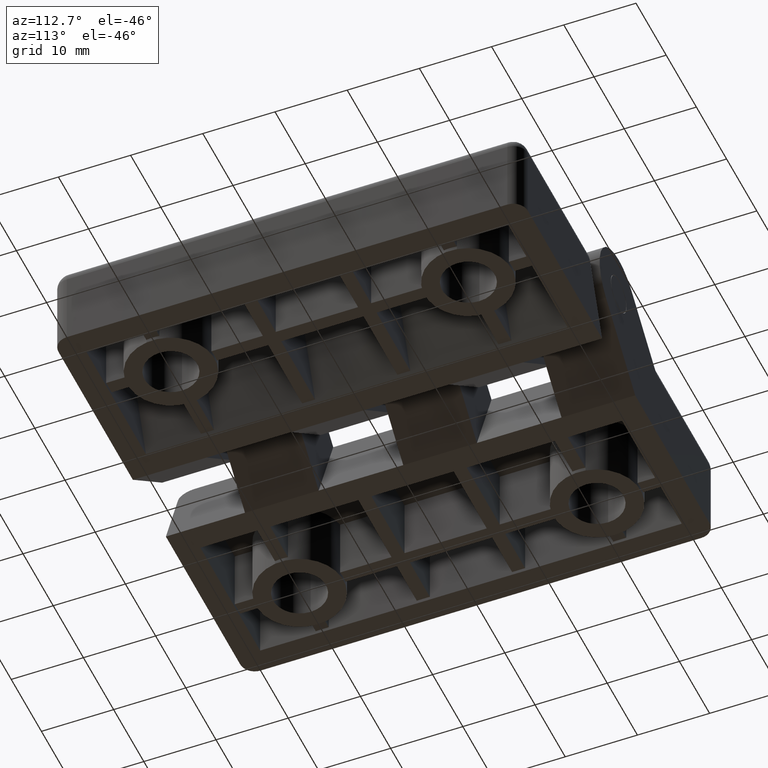
[diagram: clean part render]
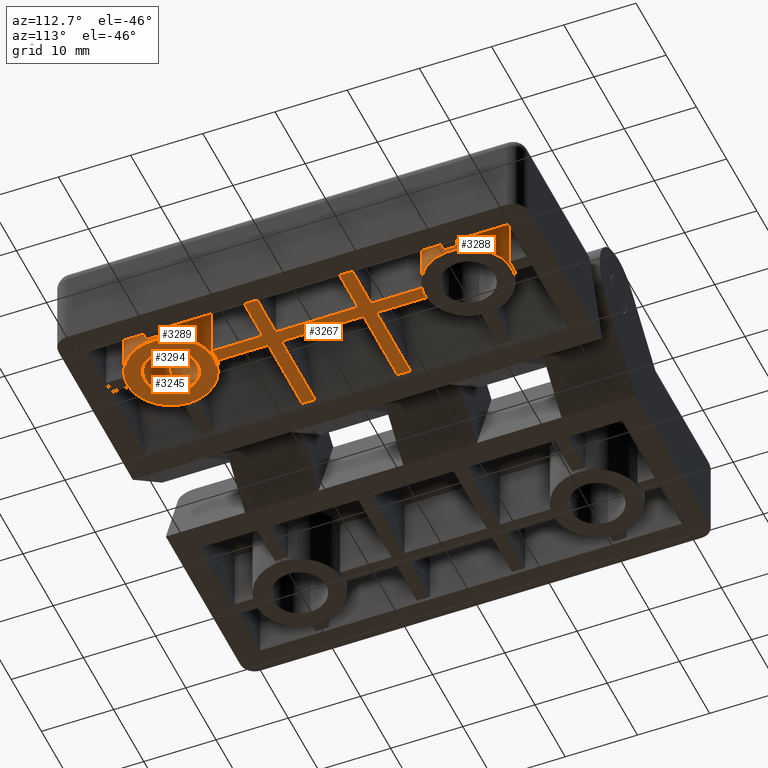
[diagram: same view with one multi-face feature highlighted, each face labeled with its STEP entity id]
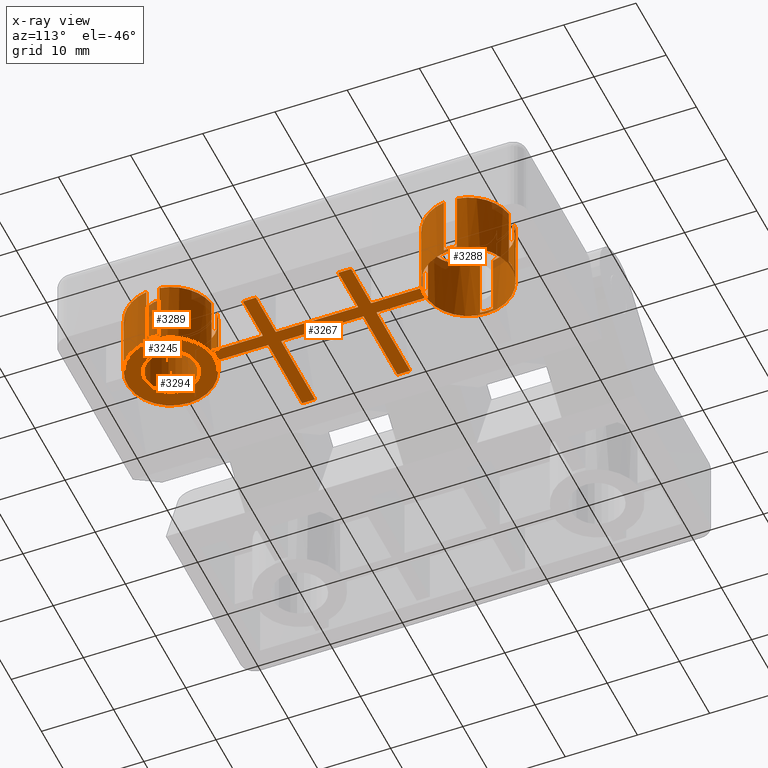
[diagram: x-ray of the same camera — body ghosted, the whole feature saturated]
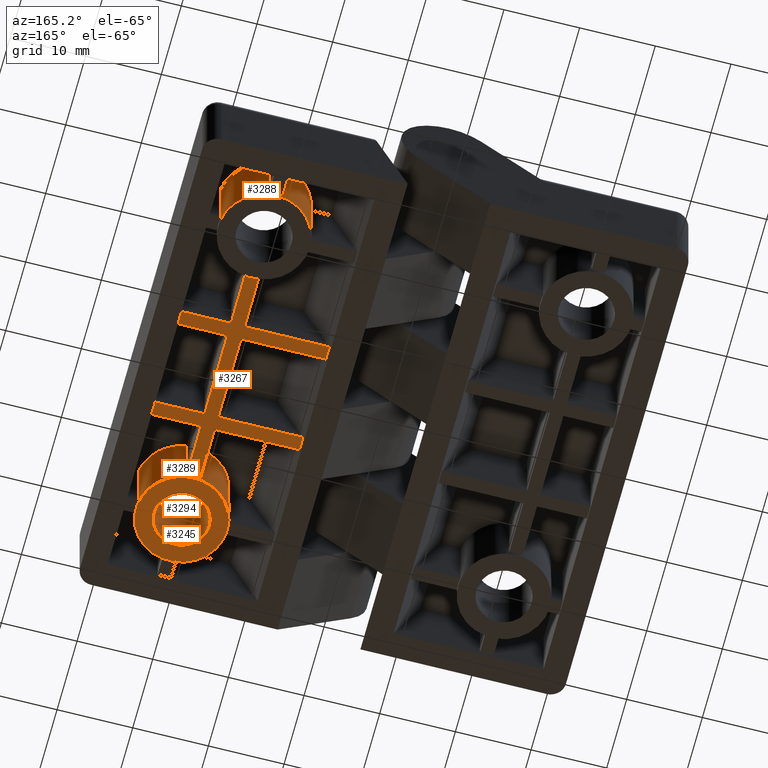
[diagram: same view with one multi-face feature highlighted, each face labeled with its STEP entity id]
A machine part, auxiliary view. The highlighted faces form ONE feature: a stepped (counterbored) hole: 3 coaxial cylindrical walls of radii 3.65 -> 6.05 -> 6.05 mm joined by 2 annular planar shoulder face(s). The faces share edges in the B-rep.
The next image is the same camera in x-ray: the body ghosted and the whole hole feature saturated, so the bore chain is visible through the body.
A second angle (auxiliary view) of the same feature is appended — it is thin or edge-on in the first view.
Their STEP definitions:
[1] entity #3288 (Cylinder):
#77=FACE_BOUND('',#599,.T.);
#382=FACE_OUTER_BOUND('',#598,.T.);
#598=EDGE_LOOP('',(#2938));
#599=EDGE_LOOP('',(#2939,#2940,#2941,#2942,#2943,#2944,#2945,#2946,#2947,
#2948,#2949,#2950,#2951,#2952,#2953,#2954));
#702=CIRCLE('',#3501,6.05);
#708=CIRCLE('',#3517,6.05);
#709=CIRCLE('',#3522,6.05);
#712=CIRCLE('',#3535,6.05);
#715=CIRCLE('',#3549,6.05);
#716=CIRCLE('',#3551,6.05);
#717=CIRCLE('',#3553,6.05);
#720=CIRCLE('',#3564,6.05);
#721=CIRCLE('',#3565,6.05);
#969=LINE('',#5197,#1323);
#971=LINE('',#5202,#1325);
#1024=LINE('',#5315,#1378);
#1026=LINE('',#5320,#1380);
#1030=LINE('',#5329,#1384);
#1044=LINE('',#5367,#1398);
#1046=LINE('',#5371,#1400);
#1049=LINE('',#5376,#1403);
#1323=VECTOR('',#4244,8.79999999999999);
#1325=VECTOR('',#4248,8.79999999999999);
#1378=VECTOR('',#4347,8.79999999999999);
#1380=VECTOR('',#4351,8.79999999999999);
#1384=VECTOR('',#4357,8.8);
#1398=VECTOR('',#4397,8.79999999999999);
#1400=VECTOR('',#4401,8.79999999999999);
#1403=VECTOR('',#4406,8.8);
#1630=VERTEX_POINT('',#5104);
#1666=VERTEX_POINT('',#5189);
#1667=VERTEX_POINT('',#5191);
#1668=VERTEX_POINT('',#5195);
#1669=VERTEX_POINT('',#5199);
#1670=VERTEX_POINT('',#5201);
#1674=VERTEX_POINT('',#5213);
#1707=VERTEX_POINT('',#5314);
#1708=VERTEX_POINT('',#5318);
#1709=VERTEX_POINT('',#5319);
#1712=VERTEX_POINT('',#5327);
#1713=VERTEX_POINT('',#5328);
#1716=VERTEX_POINT('',#5341);
#1717=VERTEX_POINT('',#5345);
#1719=VERTEX_POINT('',#5351);
#1724=VERTEX_POINT('',#5366);
#1725=VERTEX_POINT('',#5370);
#2017=EDGE_CURVE('',#1630,#1630,#702,.T.);
#2057=EDGE_CURVE('',#1666,#1667,#708,.T.);
#2060=EDGE_CURVE('',#1666,#1668,#969,.T.);
#2062=EDGE_CURVE('',#1670,#1669,#971,.T.);
#2069=EDGE_CURVE('',#1674,#1669,#709,.T.);
#2106=EDGE_CURVE('',#1668,#1670,#712,.T.);
#2120=EDGE_CURVE('',#1674,#1707,#1024,.T.);
#2122=EDGE_CURVE('',#1708,#1709,#1026,.T.);
#2126=EDGE_CURVE('',#1712,#1713,#1030,.T.);
#2133=EDGE_CURVE('',#1713,#1716,#715,.T.);
#2135=EDGE_CURVE('',#1709,#1717,#716,.T.);
#2138=EDGE_CURVE('',#1707,#1719,#717,.T.);
#2145=EDGE_CURVE('',#1719,#1724,#1044,.T.);
#2147=EDGE_CURVE('',#1717,#1725,#1046,.T.);
#2150=EDGE_CURVE('',#1716,#1667,#1049,.T.);
#2155=EDGE_CURVE('',#1708,#1724,#720,.T.);
#2156=EDGE_CURVE('',#1712,#1725,#721,.T.);
#2938=ORIENTED_EDGE('',*,*,#2017,.F.);
#2939=ORIENTED_EDGE('',*,*,#2138,.T.);
#2940=ORIENTED_EDGE('',*,*,#2145,.T.);
#2941=ORIENTED_EDGE('',*,*,#2155,.F.);
#2942=ORIENTED_EDGE('',*,*,#2122,.T.);
#2943=ORIENTED_EDGE('',*,*,#2135,.T.);
#2944=ORIENTED_EDGE('',*,*,#2147,.T.);
#2945=ORIENTED_EDGE('',*,*,#2156,.F.);
#2946=ORIENTED_EDGE('',*,*,#2126,.T.);
#2947=ORIENTED_EDGE('',*,*,#2133,.T.);
#2948=ORIENTED_EDGE('',*,*,#2150,.T.);
#2949=ORIENTED_EDGE('',*,*,#2057,.F.);
#2950=ORIENTED_EDGE('',*,*,#2060,.T.);
#2951=ORIENTED_EDGE('',*,*,#2106,.T.);
#2952=ORIENTED_EDGE('',*,*,#2062,.T.);
#2953=ORIENTED_EDGE('',*,*,#2069,.F.);
#2954=ORIENTED_EDGE('',*,*,#2120,.T.);
#3130=CYLINDRICAL_SURFACE('',#3563,6.05);
#3288=ADVANCED_FACE('',(#382,#77),#3130,.T.);
#3501=AXIS2_PLACEMENT_3D('',#5105,#4172,#4173);
#3517=AXIS2_PLACEMENT_3D('',#5192,#4238,#4239);
#3522=AXIS2_PLACEMENT_3D('',#5215,#4259,#4260);
#3535=AXIS2_PLACEMENT_3D('',#5285,#4319,#4320);
#3549=AXIS2_PLACEMENT_3D('',#5342,#4371,#4372);
#3551=AXIS2_PLACEMENT_3D('',#5346,#4376,#4377);
#3553=AXIS2_PLACEMENT_3D('',#5352,#4382,#4383);
#3563=AXIS2_PLACEMENT_3D('',#5384,#4416,#4417);
#3564=AXIS2_PLACEMENT_3D('',#5385,#4418,#4419);
#3565=AXIS2_PLACEMENT_3D('',#5386,#4420,#4421);
#4172=DIRECTION('center_axis',(0.,0.,-1.));
#4173=DIRECTION('ref_axis',(1.,0.,0.));
#4238=DIRECTION('center_axis',(-2.39444996755761E-16,0.,1.));
#4239=DIRECTION('ref_axis',(1.,0.,2.39444996755761E-16));
#4244=DIRECTION('',(0.,0.,-1.));
#4248=DIRECTION('',(0.,0.,1.));
#4259=DIRECTION('center_axis',(-2.39444996755761E-16,0.,1.));
#4260=DIRECTION('ref_axis',(1.,0.,2.39444996755761E-16));
#4319=DIRECTION('center_axis',(0.,0.,-1.));
#4320=DIRECTION('ref_axis',(1.,0.,0.));
#4347=DIRECTION('',(0.,0.,-1.));
#4351=DIRECTION('',(0.,0.,-1.));
#4357=DIRECTION('',(0.,0.,-1.));
#4371=DIRECTION('center_axis',(0.,0.,-1.));
#4372=DIRECTION('ref_axis',(1.,0.,0.));
#4376=DIRECTION('center_axis',(0.,0.,-1.));
#4377=DIRECTION('ref_axis',(1.,0.,0.));
#4382=DIRECTION('center_axis',(0.,0.,-1.));
#4383=DIRECTION('ref_axis',(1.,0.,0.));
#4397=DIRECTION('',(0.,0.,1.));
#4401=DIRECTION('',(0.,0.,1.));
#4406=DIRECTION('',(0.,0.,1.));
#4416=DIRECTION('center_axis',(0.,0.,1.));
#4417=DIRECTION('ref_axis',(1.,0.,0.));
#4418=DIRECTION('center_axis',(-2.39444996755761E-16,0.,1.));
#4419=DIRECTION('ref_axis',(1.,0.,2.39444996755761E-16));
#4420=DIRECTION('center_axis',(-2.39444996755761E-16,0.,1.));
#4421=DIRECTION('ref_axis',(1.,0.,2.39444996755761E-16));
#5104=CARTESIAN_POINT('',(15.25,20.6,-13.3999999999871));
#5105=CARTESIAN_POINT('Origin',(21.3,20.6,-13.3999999999871));
#5189=CARTESIAN_POINT('',(22.2,14.6173166555466,-4.09999999998711));
#5191=CARTESIAN_POINT('',(27.2826833444534,19.7,-4.0999999999871));
#5192=CARTESIAN_POINT('Origin',(21.3,20.6,-4.09999999998711));
#5195=CARTESIAN_POINT('',(22.2,14.6173166555466,-12.8999999999871));
#5197=CARTESIAN_POINT('',(22.2,14.6173166555466,-13.3999999999871));
#5199=CARTESIAN_POINT('',(20.4,14.6173166555466,-4.09999999998711));
#5201=CARTESIAN_POINT('',(20.4,14.6173166555466,-12.8999999999871));
#5202=CARTESIAN_POINT('',(20.4,14.6173166555466,-13.3999999999871));
#5213=CARTESIAN_POINT('',(15.3173166555466,19.7,-4.09999999998711));
#5215=CARTESIAN_POINT('Origin',(21.3,20.6,-4.09999999998711));
#5285=CARTESIAN_POINT('Origin',(21.3,20.6,-12.8999999999871));
#5314=CARTESIAN_POINT('',(15.3173166555466,19.7,-12.8999999999871));
#5315=CARTESIAN_POINT('',(15.3173166555466,19.7,-13.3999999999871));
#5318=CARTESIAN_POINT('',(20.4,26.5826833444534,-4.09999999998711));
#5319=CARTESIAN_POINT('',(20.4,26.5826833444534,-12.8999999999871));
#5320=CARTESIAN_POINT('',(20.4,26.5826833444534,-13.3999999999871));
#5327=CARTESIAN_POINT('',(27.2826833444534,21.5,-4.0999999999871));
#5328=CARTESIAN_POINT('',(27.2826833444534,21.5,-12.8999999999871));
#5329=CARTESIAN_POINT('',(27.2826833444534,21.5,-13.3999999999871));
#5341=CARTESIAN_POINT('',(27.2826833444534,19.7,-12.8999999999871));
#5342=CARTESIAN_POINT('Origin',(21.3,20.6,-12.8999999999871));
#5345=CARTESIAN_POINT('',(22.2,26.5826833444534,-12.8999999999871));
#5346=CARTESIAN_POINT('Origin',(21.3,20.6,-12.8999999999871));
#5351=CARTESIAN_POINT('',(15.3173166555466,21.5,-12.8999999999871));
#5352=CARTESIAN_POINT('Origin',(21.3,20.6,-12.8999999999871));
#5366=CARTESIAN_POINT('',(15.3173166555466,21.5,-4.09999999998711));
#5367=CARTESIAN_POINT('',(15.3173166555466,21.5,-13.3999999999871));
#5370=CARTESIAN_POINT('',(22.2,26.5826833444534,-4.09999999998711));
#5371=CARTESIAN_POINT('',(22.2,26.5826833444534,-13.3999999999871));
#5376=CARTESIAN_POINT('',(27.2826833444534,19.7,-13.3999999999871));
#5384=CARTESIAN_POINT('Origin',(21.3,20.6,-13.3999999999871));
#5385=CARTESIAN_POINT('Origin',(21.3,20.6,-4.09999999998711));
#5386=CARTESIAN_POINT('Origin',(21.3,20.6,-4.09999999998711));
[2] entity #3289 (Cylinder):
#78=FACE_BOUND('',#601,.T.);
#383=FACE_OUTER_BOUND('',#600,.T.);
#600=EDGE_LOOP('',(#2955));
#601=EDGE_LOOP('',(#2956,#2957,#2958,#2959,#2960,#2961,#2962,#2963,#2964,
#2965,#2966,#2967,#2968,#2969,#2970,#2971));
#710=CIRCLE('',#3528,6.05);
#711=CIRCLE('',#3534,6.05);
#713=CIRCLE('',#3537,6.05);
#714=CIRCLE('',#3547,6.05);
#718=CIRCLE('',#3555,6.05);
#719=CIRCLE('',#3562,6.05);
#722=CIRCLE('',#3567,6.05);
#723=CIRCLE('',#3568,6.05);
#724=CIRCLE('',#3569,6.05);
#1008=LINE('',#5277,#1362);
#1014=LINE('',#5293,#1368);
#1015=LINE('',#5297,#1369);
#1019=LINE('',#5306,#1373);
#1022=LINE('',#5311,#1376);
#1033=LINE('',#5334,#1387);
#1040=LINE('',#5359,#1394);
#1050=LINE('',#5379,#1404);
#1362=VECTOR('',#4309,8.79999999999999);
#1368=VECTOR('',#4329,8.79999999999999);
#1369=VECTOR('',#4332,8.79999999999999);
#1373=VECTOR('',#4338,8.79999999999999);
#1376=VECTOR('',#4343,8.79999999999999);
#1387=VECTOR('',#4362,8.8);
#1394=VECTOR('',#4391,8.79999999999999);
#1404=VECTOR('',#4409,8.8);
#1685=VERTEX_POINT('',#5244);
#1686=VERTEX_POINT('',#5246);
#1696=VERTEX_POINT('',#5276);
#1697=VERTEX_POINT('',#5282);
#1698=VERTEX_POINT('',#5287);
#1699=VERTEX_POINT('',#5289);
#1700=VERTEX_POINT('',#5295);
#1701=VERTEX_POINT('',#5296);
#1704=VERTEX_POINT('',#5304);
#1705=VERTEX_POINT('',#5305);
#1706=VERTEX_POINT('',#5310);
#1714=VERTEX_POINT('',#5333);
#1715=VERTEX_POINT('',#5337);
#1720=VERTEX_POINT('',#5357);
#1721=VERTEX_POINT('',#5358);
#1727=VERTEX_POINT('',#5378);
#1728=VERTEX_POINT('',#5388);
#2084=EDGE_CURVE('',#1685,#1686,#710,.T.);
#2101=EDGE_CURVE('',#1696,#1686,#1008,.T.);
#2104=EDGE_CURVE('',#1697,#1696,#711,.T.);
#2108=EDGE_CURVE('',#1698,#1699,#713,.T.);
#2110=EDGE_CURVE('',#1698,#1697,#1014,.T.);
#2111=EDGE_CURVE('',#1700,#1701,#1015,.T.);
#2115=EDGE_CURVE('',#1704,#1705,#1019,.T.);
#2118=EDGE_CURVE('',#1706,#1699,#1022,.T.);
#2129=EDGE_CURVE('',#1685,#1714,#1033,.T.);
#2131=EDGE_CURVE('',#1714,#1715,#714,.T.);
#2140=EDGE_CURVE('',#1705,#1706,#718,.T.);
#2141=EDGE_CURVE('',#1720,#1721,#1040,.T.);
#2151=EDGE_CURVE('',#1715,#1727,#1050,.T.);
#2153=EDGE_CURVE('',#1701,#1720,#719,.T.);
#2157=EDGE_CURVE('',#1728,#1728,#722,.T.);
#2158=EDGE_CURVE('',#1700,#1727,#723,.T.);
#2159=EDGE_CURVE('',#1704,#1721,#724,.T.);
#2955=ORIENTED_EDGE('',*,*,#2157,.F.);
#2956=ORIENTED_EDGE('',*,*,#2140,.T.);
#2957=ORIENTED_EDGE('',*,*,#2118,.T.);
#2958=ORIENTED_EDGE('',*,*,#2108,.F.);
#2959=ORIENTED_EDGE('',*,*,#2110,.T.);
#2960=ORIENTED_EDGE('',*,*,#2104,.T.);
#2961=ORIENTED_EDGE('',*,*,#2101,.T.);
#2962=ORIENTED_EDGE('',*,*,#2084,.F.);
#2963=ORIENTED_EDGE('',*,*,#2129,.T.);
#2964=ORIENTED_EDGE('',*,*,#2131,.T.);
#2965=ORIENTED_EDGE('',*,*,#2151,.T.);
#2966=ORIENTED_EDGE('',*,*,#2158,.F.);
#2967=ORIENTED_EDGE('',*,*,#2111,.T.);
#2968=ORIENTED_EDGE('',*,*,#2153,.T.);
#2969=ORIENTED_EDGE('',*,*,#2141,.T.);
#2970=ORIENTED_EDGE('',*,*,#2159,.F.);
#2971=ORIENTED_EDGE('',*,*,#2115,.T.);
#3131=CYLINDRICAL_SURFACE('',#3566,6.05);
#3289=ADVANCED_FACE('',(#383,#78),#3131,.T.);
#3528=AXIS2_PLACEMENT_3D('',#5247,#4285,#4286);
#3534=AXIS2_PLACEMENT_3D('',#5283,#4316,#4317);
#3537=AXIS2_PLACEMENT_3D('',#5290,#4324,#4325);
#3547=AXIS2_PLACEMENT_3D('',#5338,#4366,#4367);
#3555=AXIS2_PLACEMENT_3D('',#5355,#4387,#4388);
#3562=AXIS2_PLACEMENT_3D('',#5382,#4413,#4414);
#3566=AXIS2_PLACEMENT_3D('',#5387,#4422,#4423);
#3567=AXIS2_PLACEMENT_3D('',#5389,#4424,#4425);
#3568=AXIS2_PLACEMENT_3D('',#5390,#4426,#4427);
#3569=AXIS2_PLACEMENT_3D('',#5391,#4428,#4429);
#4285=DIRECTION('center_axis',(-2.39444996755761E-16,0.,1.));
#4286=DIRECTION('ref_axis',(1.,0.,2.39444996755761E-16));
#4309=DIRECTION('',(0.,0.,1.));
#4316=DIRECTION('center_axis',(0.,0.,-1.));
#4317=DIRECTION('ref_axis',(1.,0.,0.));
#4324=DIRECTION('center_axis',(-2.39444996755761E-16,0.,1.));
#4325=DIRECTION('ref_axis',(1.,0.,2.39444996755761E-16));
#4329=DIRECTION('',(0.,0.,-1.));
#4332=DIRECTION('',(0.,0.,-1.));
#4338=DIRECTION('',(0.,0.,-1.));
#4343=DIRECTION('',(0.,0.,1.));
#4362=DIRECTION('',(0.,0.,-1.));
#4366=DIRECTION('center_axis',(0.,0.,-1.));
#4367=DIRECTION('ref_axis',(1.,0.,0.));
#4387=DIRECTION('center_axis',(0.,0.,-1.));
#4388=DIRECTION('ref_axis',(1.,0.,0.));
#4391=DIRECTION('',(0.,0.,1.));
#4409=DIRECTION('',(0.,0.,1.));
#4413=DIRECTION('center_axis',(0.,0.,-1.));
#4414=DIRECTION('ref_axis',(1.,0.,0.));
#4422=DIRECTION('center_axis',(0.,0.,1.));
#4423=DIRECTION('ref_axis',(1.,0.,0.));
#4424=DIRECTION('center_axis',(0.,0.,-1.));
#4425=DIRECTION('ref_axis',(1.,0.,0.));
#4426=DIRECTION('center_axis',(-2.39444996755761E-16,0.,1.));
#4427=DIRECTION('ref_axis',(1.,0.,2.39444996755761E-16));
#4428=DIRECTION('center_axis',(-2.39444996755761E-16,0.,1.));
#4429=DIRECTION('ref_axis',(1.,0.,2.39444996755761E-16));
#5244=CARTESIAN_POINT('',(27.2826833444534,-19.7,-4.0999999999871));
#5246=CARTESIAN_POINT('',(22.2,-14.6173166555466,-4.09999999998711));
#5247=CARTESIAN_POINT('Origin',(21.3,-20.6,-4.09999999998711));
#5276=CARTESIAN_POINT('',(22.2,-14.6173166555466,-12.8999999999871));
#5277=CARTESIAN_POINT('',(22.2,-14.6173166555466,-13.3999999999871));
#5282=CARTESIAN_POINT('',(20.4,-14.6173166555466,-12.8999999999871));
#5283=CARTESIAN_POINT('Origin',(21.3,-20.6,-12.8999999999871));
#5287=CARTESIAN_POINT('',(20.4,-14.6173166555466,-4.09999999998711));
#5289=CARTESIAN_POINT('',(15.3173166555466,-19.7,-4.09999999998711));
#5290=CARTESIAN_POINT('Origin',(21.3,-20.6,-4.09999999998711));
#5293=CARTESIAN_POINT('',(20.4,-14.6173166555466,-13.3999999999871));
#5295=CARTESIAN_POINT('',(22.2,-26.5826833444534,-4.09999999998711));
#5296=CARTESIAN_POINT('',(22.2,-26.5826833444534,-12.8999999999871));
#5297=CARTESIAN_POINT('',(22.2,-26.5826833444534,-13.3999999999871));
#5304=CARTESIAN_POINT('',(15.3173166555466,-21.5,-4.09999999998711));
#5305=CARTESIAN_POINT('',(15.3173166555466,-21.5,-12.8999999999871));
#5306=CARTESIAN_POINT('',(15.3173166555466,-21.5,-13.3999999999871));
#5310=CARTESIAN_POINT('',(15.3173166555466,-19.7,-12.8999999999871));
#5311=CARTESIAN_POINT('',(15.3173166555466,-19.7,-13.3999999999871));
#5333=CARTESIAN_POINT('',(27.2826833444534,-19.7,-12.8999999999871));
#5334=CARTESIAN_POINT('',(27.2826833444534,-19.7,-13.3999999999871));
#5337=CARTESIAN_POINT('',(27.2826833444534,-21.5,-12.8999999999871));
#5338=CARTESIAN_POINT('Origin',(21.3,-20.6,-12.8999999999871));
#5355=CARTESIAN_POINT('Origin',(21.3,-20.6,-12.8999999999871));
#5357=CARTESIAN_POINT('',(20.4,-26.5826833444534,-12.8999999999871));
#5358=CARTESIAN_POINT('',(20.4,-26.5826833444534,-4.09999999998711));
#5359=CARTESIAN_POINT('',(20.4,-26.5826833444534,-13.3999999999871));
#5378=CARTESIAN_POINT('',(27.2826833444534,-21.5,-4.0999999999871));
#5379=CARTESIAN_POINT('',(27.2826833444534,-21.5,-13.3999999999871));
#5382=CARTESIAN_POINT('Origin',(21.3,-20.6,-12.8999999999871));
#5387=CARTESIAN_POINT('Origin',(21.3,-20.6,-13.3999999999871));
#5388=CARTESIAN_POINT('',(15.25,-20.6,-13.3999999999871));
#5389=CARTESIAN_POINT('Origin',(21.3,-20.6,-13.3999999999871));
#5390=CARTESIAN_POINT('Origin',(21.3,-20.6,-4.09999999998711));
#5391=CARTESIAN_POINT('Origin',(21.3,-20.6,-4.09999999998711));
[3] entity #3245 (Cylinder):
#74=FACE_BOUND('',#553,.T.);
#339=FACE_OUTER_BOUND('',#552,.T.);
#552=EDGE_LOOP('',(#2720));
#553=EDGE_LOOP('',(#2721));
#703=CIRCLE('',#3503,3.65);
#705=CIRCLE('',#3506,3.65);
#1631=VERTEX_POINT('',#5107);
#1633=VERTEX_POINT('',#5112);
#2018=EDGE_CURVE('',#1631,#1631,#703,.T.);
#2020=EDGE_CURVE('',#1633,#1633,#705,.T.);
#2720=ORIENTED_EDGE('',*,*,#2020,.F.);
#2721=ORIENTED_EDGE('',*,*,#2018,.F.);
#3127=CYLINDRICAL_SURFACE('',#3505,3.65);
#3245=ADVANCED_FACE('',(#339,#74),#3127,.F.);
#3503=AXIS2_PLACEMENT_3D('',#5108,#4176,#4177);
#3505=AXIS2_PLACEMENT_3D('',#5111,#4180,#4181);
#3506=AXIS2_PLACEMENT_3D('',#5113,#4182,#4183);
#4176=DIRECTION('center_axis',(2.80149588304563E-16,0.,-1.));
#4177=DIRECTION('ref_axis',(1.,0.,2.80149588304563E-16));
#4180=DIRECTION('center_axis',(2.80149588304563E-16,0.,-1.));
#4181=DIRECTION('ref_axis',(1.,0.,2.80149588304563E-16));
#4182=DIRECTION('center_axis',(0.,0.,1.));
#4183=DIRECTION('ref_axis',(1.,0.,0.));
#5107=CARTESIAN_POINT('',(17.65,-20.6,-3.64999999998711));
#5108=CARTESIAN_POINT('Origin',(21.3,-20.6,-3.64999999998711));
#5111=CARTESIAN_POINT('Origin',(21.3,-20.6,-7.95499999998711));
#5112=CARTESIAN_POINT('',(17.65,-20.6,-13.3999999999871));
#5113=CARTESIAN_POINT('Origin',(21.3,-20.6,-13.3999999999871));
[4] entity #3267 (Plane):
#181=PLANE('',#3533);
#361=FACE_OUTER_BOUND('',#577,.T.);
#577=EDGE_LOOP('',(#2837,#2838,#2839,#2840,#2841,#2842,#2843,#2844,#2845,
#2846,#2847,#2848,#2849,#2850,#2851,#2852,#2853,#2854,#2855,#2856));
#711=CIRCLE('',#3534,6.05);
#712=CIRCLE('',#3535,6.05);
#936=LINE('',#5128,#1290);
#940=LINE('',#5137,#1294);
#942=LINE('',#5143,#1296);
#946=LINE('',#5152,#1300);
#949=LINE('',#5157,#1303);
#963=LINE('',#5184,#1317);
#968=LINE('',#5196,#1322);
#972=LINE('',#5203,#1326);
#973=LINE('',#5206,#1327);
#980=LINE('',#5221,#1334);
#982=LINE('',#5227,#1336);
#987=LINE('',#5236,#1341);
#988=LINE('',#5239,#1342);
#995=LINE('',#5253,#1349);
#1007=LINE('',#5274,#1361);
#1009=LINE('',#5278,#1363);
#1010=LINE('',#5280,#1364);
#1011=LINE('',#5284,#1365);
#1290=VECTOR('',#4197,6.6);
#1294=VECTOR('',#4203,11.2062840689254);
#1296=VECTOR('',#4207,11.2062840689254);
#1300=VECTOR('',#4213,6.6);
#1303=VECTOR('',#4218,1.8);
#1317=VECTOR('',#4232,1.8);
#1322=VECTOR('',#4243,7.1173166555466);
#1326=VECTOR('',#4249,7.1173166555466);
#1327=VECTOR('',#4252,11.4);
#1334=VECTOR('',#4265,11.2062840689254);
#1336=VECTOR('',#4269,11.2062840689254);
#1341=VECTOR('',#4276,6.6);
#1342=VECTOR('',#4279,6.6);
#1349=VECTOR('',#4294,1.8);
#1361=VECTOR('',#4306,1.8);
#1363=VECTOR('',#4310,7.1173166555466);
#1364=VECTOR('',#4313,11.4);
#1365=VECTOR('',#4318,7.1173166555466);
#1637=VERTEX_POINT('',#5122);
#1639=VERTEX_POINT('',#5126);
#1641=VERTEX_POINT('',#5131);
#1643=VERTEX_POINT('',#5135);
#1644=VERTEX_POINT('',#5139);
#1646=VERTEX_POINT('',#5142);
#1648=VERTEX_POINT('',#5148);
#1650=VERTEX_POINT('',#5151);
#1663=VERTEX_POINT('',#5181);
#1664=VERTEX_POINT('',#5183);
#1668=VERTEX_POINT('',#5195);
#1670=VERTEX_POINT('',#5201);
#1671=VERTEX_POINT('',#5205);
#1676=VERTEX_POINT('',#5218);
#1677=VERTEX_POINT('',#5223);
#1679=VERTEX_POINT('',#5226);
#1682=VERTEX_POINT('',#5234);
#1683=VERTEX_POINT('',#5238);
#1696=VERTEX_POINT('',#5276);
#1697=VERTEX_POINT('',#5282);
#2026=EDGE_CURVE('',#1637,#1639,#936,.T.);
#2030=EDGE_CURVE('',#1641,#1643,#940,.T.);
#2032=EDGE_CURVE('',#1646,#1644,#942,.T.);
#2036=EDGE_CURVE('',#1650,#1648,#946,.T.);
#2039=EDGE_CURVE('',#1637,#1648,#949,.T.);
#2053=EDGE_CURVE('',#1663,#1664,#963,.T.);
#2059=EDGE_CURVE('',#1668,#1650,#968,.T.);
#2063=EDGE_CURVE('',#1644,#1670,#972,.T.);
#2064=EDGE_CURVE('',#1671,#1641,#973,.T.);
#2072=EDGE_CURVE('',#1671,#1676,#980,.T.);
#2074=EDGE_CURVE('',#1677,#1679,#982,.T.);
#2079=EDGE_CURVE('',#1682,#1663,#987,.T.);
#2080=EDGE_CURVE('',#1664,#1683,#988,.T.);
#2088=EDGE_CURVE('',#1676,#1677,#995,.T.);
#2100=EDGE_CURVE('',#1646,#1643,#1007,.T.);
#2102=EDGE_CURVE('',#1682,#1696,#1009,.T.);
#2103=EDGE_CURVE('',#1639,#1683,#1010,.T.);
#2104=EDGE_CURVE('',#1697,#1696,#711,.T.);
#2105=EDGE_CURVE('',#1697,#1679,#1011,.T.);
#2106=EDGE_CURVE('',#1668,#1670,#712,.T.);
#2837=ORIENTED_EDGE('',*,*,#2103,.T.);
#2838=ORIENTED_EDGE('',*,*,#2080,.F.);
#2839=ORIENTED_EDGE('',*,*,#2053,.F.);
#2840=ORIENTED_EDGE('',*,*,#2079,.F.);
#2841=ORIENTED_EDGE('',*,*,#2102,.T.);
#2842=ORIENTED_EDGE('',*,*,#2104,.F.);
#2843=ORIENTED_EDGE('',*,*,#2105,.T.);
#2844=ORIENTED_EDGE('',*,*,#2074,.F.);
#2845=ORIENTED_EDGE('',*,*,#2088,.F.);
#2846=ORIENTED_EDGE('',*,*,#2072,.F.);
#2847=ORIENTED_EDGE('',*,*,#2064,.T.);
#2848=ORIENTED_EDGE('',*,*,#2030,.T.);
#2849=ORIENTED_EDGE('',*,*,#2100,.F.);
#2850=ORIENTED_EDGE('',*,*,#2032,.T.);
#2851=ORIENTED_EDGE('',*,*,#2063,.T.);
#2852=ORIENTED_EDGE('',*,*,#2106,.F.);
#2853=ORIENTED_EDGE('',*,*,#2059,.T.);
#2854=ORIENTED_EDGE('',*,*,#2036,.T.);
#2855=ORIENTED_EDGE('',*,*,#2039,.F.);
#2856=ORIENTED_EDGE('',*,*,#2026,.T.);
#3267=ADVANCED_FACE('',(#361),#181,.T.);
#3533=AXIS2_PLACEMENT_3D('',#5281,#4314,#4315);
#3534=AXIS2_PLACEMENT_3D('',#5283,#4316,#4317);
#3535=AXIS2_PLACEMENT_3D('',#5285,#4319,#4320);
#4197=DIRECTION('',(-1.,0.,0.));
#4203=DIRECTION('',(-1.,0.,0.));
#4207=DIRECTION('',(1.,0.,0.));
#4213=DIRECTION('',(1.,0.,0.));
#4218=DIRECTION('',(0.,1.,0.));
#4232=DIRECTION('',(0.,1.,0.));
#4243=DIRECTION('',(0.,-1.,0.));
#4249=DIRECTION('',(0.,1.,0.));
#4252=DIRECTION('',(0.,1.,0.));
#4265=DIRECTION('',(-1.,0.,0.));
#4269=DIRECTION('',(1.,0.,0.));
#4276=DIRECTION('',(1.,0.,0.));
#4279=DIRECTION('',(-1.,0.,0.));
#4294=DIRECTION('',(0.,-1.,0.));
#4306=DIRECTION('',(0.,-1.,0.));
#4310=DIRECTION('',(0.,-1.,0.));
#4313=DIRECTION('',(0.,-1.,0.));
#4314=DIRECTION('center_axis',(0.,0.,-1.));
#4315=DIRECTION('ref_axis',(-1.,0.,0.));
#4316=DIRECTION('center_axis',(0.,0.,-1.));
#4317=DIRECTION('ref_axis',(1.,0.,0.));
#4318=DIRECTION('',(0.,1.,0.));
#4319=DIRECTION('center_axis',(0.,0.,-1.));
#4320=DIRECTION('ref_axis',(1.,0.,0.));
#5122=CARTESIAN_POINT('',(28.8,5.7,-12.8999999999871));
#5126=CARTESIAN_POINT('',(22.2,5.7,-12.8999999999871));
#5128=CARTESIAN_POINT('',(30.4220447265728,5.7,-12.8999999999871));
#5131=CARTESIAN_POINT('',(20.4,5.7,-12.8999999999871));
#5135=CARTESIAN_POINT('',(9.19371593107458,5.7,-12.8999999999871));
#5137=CARTESIAN_POINT('',(30.4220447265728,5.7,-12.8999999999871));
#5139=CARTESIAN_POINT('',(20.4,7.5,-12.8999999999871));
#5142=CARTESIAN_POINT('',(9.19371593107458,7.5,-12.8999999999871));
#5143=CARTESIAN_POINT('',(7.00000010430813,7.5,-12.8999999999871));
#5148=CARTESIAN_POINT('',(28.8,7.5,-12.8999999999871));
#5151=CARTESIAN_POINT('',(22.2,7.5,-12.8999999999871));
#5152=CARTESIAN_POINT('',(7.00000010430813,7.5,-12.8999999999871));
#5157=CARTESIAN_POINT('',(28.8,3.3,-12.8999999999871));
#5181=CARTESIAN_POINT('',(28.8,-7.5,-12.8999999999871));
#5183=CARTESIAN_POINT('',(28.8,-5.7,-12.8999999999871));
#5184=CARTESIAN_POINT('',(28.8,-3.3,-12.8999999999871));
#5195=CARTESIAN_POINT('',(22.2,14.6173166555466,-12.8999999999871));
#5196=CARTESIAN_POINT('',(22.2,30.9999999999999,-12.8999999999871));
#5201=CARTESIAN_POINT('',(20.4,14.6173166555466,-12.8999999999871));
#5203=CARTESIAN_POINT('',(20.4,-30.9999999999999,-12.8999999999871));
#5205=CARTESIAN_POINT('',(20.4,-5.7,-12.8999999999871));
#5206=CARTESIAN_POINT('',(20.4,-30.9999999999999,-12.8999999999871));
#5218=CARTESIAN_POINT('',(9.19371593107458,-5.7,-12.8999999999871));
#5221=CARTESIAN_POINT('',(30.4220447265728,-5.7,-12.8999999999871));
#5223=CARTESIAN_POINT('',(9.19371593107458,-7.5,-12.8999999999871));
#5226=CARTESIAN_POINT('',(20.4,-7.5,-12.8999999999871));
#5227=CARTESIAN_POINT('',(7.00000010430813,-7.5,-12.8999999999871));
#5234=CARTESIAN_POINT('',(22.2,-7.5,-12.8999999999871));
#5236=CARTESIAN_POINT('',(7.00000010430813,-7.5,-12.8999999999871));
#5238=CARTESIAN_POINT('',(22.2,-5.7,-12.8999999999871));
#5239=CARTESIAN_POINT('',(30.4220447265728,-5.7,-12.8999999999871));
#5253=CARTESIAN_POINT('',(9.19371593107458,-3.3,-12.8999999999871));
#5274=CARTESIAN_POINT('',(9.19371593107458,3.3,-12.8999999999871));
#5276=CARTESIAN_POINT('',(22.2,-14.6173166555466,-12.8999999999871));
#5278=CARTESIAN_POINT('',(22.2,30.9999999999999,-12.8999999999871));
#5280=CARTESIAN_POINT('',(22.2,30.9999999999999,-12.8999999999871));
#5281=CARTESIAN_POINT('Origin',(18.8986116064888,0.,-12.8999999999871));
#5282=CARTESIAN_POINT('',(20.4,-14.6173166555466,-12.8999999999871));
#5283=CARTESIAN_POINT('Origin',(21.3,-20.6,-12.8999999999871));
#5284=CARTESIAN_POINT('',(20.4,-30.9999999999999,-12.8999999999871));
#5285=CARTESIAN_POINT('Origin',(21.3,20.6,-12.8999999999871));
[5] entity #3294 (Plane):
#79=FACE_BOUND('',#607,.T.);
#206=PLANE('',#3574);
#388=FACE_OUTER_BOUND('',#606,.T.);
#606=EDGE_LOOP('',(#2991));
#607=EDGE_LOOP('',(#2992));
#705=CIRCLE('',#3506,3.65);
#722=CIRCLE('',#3567,6.05);
#1633=VERTEX_POINT('',#5112);
#1728=VERTEX_POINT('',#5388);
#2020=EDGE_CURVE('',#1633,#1633,#705,.T.);
#2157=EDGE_CURVE('',#1728,#1728,#722,.T.);
#2991=ORIENTED_EDGE('',*,*,#2157,.T.);
#2992=ORIENTED_EDGE('',*,*,#2020,.T.);
#3294=ADVANCED_FACE('',(#388,#79),#206,.T.);
#3506=AXIS2_PLACEMENT_3D('',#5113,#4182,#4183);
#3567=AXIS2_PLACEMENT_3D('',#5389,#4424,#4425);
#3574=AXIS2_PLACEMENT_3D('',#5399,#4441,#4442);
#4182=DIRECTION('center_axis',(0.,0.,1.));
#4183=DIRECTION('ref_axis',(1.,0.,0.));
#4424=DIRECTION('center_axis',(0.,0.,-1.));
#4425=DIRECTION('ref_axis',(1.,0.,0.));
#4441=DIRECTION('center_axis',(0.,0.,-1.));
#4442=DIRECTION('ref_axis',(1.,0.,0.));
#5112=CARTESIAN_POINT('',(17.65,-20.6,-13.3999999999871));
#5113=CARTESIAN_POINT('Origin',(21.3,-20.6,-13.3999999999871));
#5388=CARTESIAN_POINT('',(15.25,-20.6,-13.3999999999871));
#5389=CARTESIAN_POINT('Origin',(21.3,-20.6,-13.3999999999871));
#5399=CARTESIAN_POINT('Origin',(21.3,-20.6,-13.3999999999871));